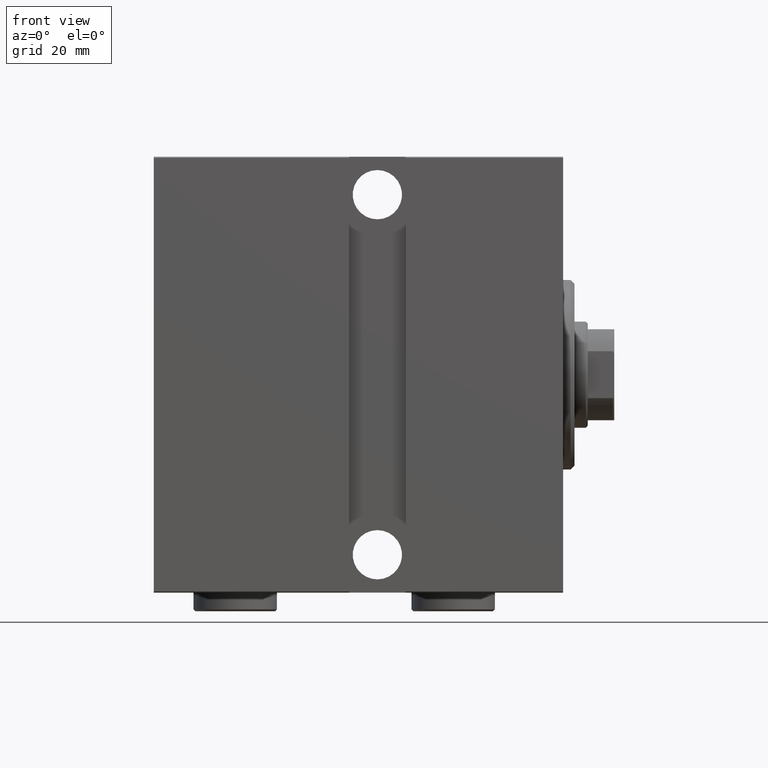
[diagram: clean part render]
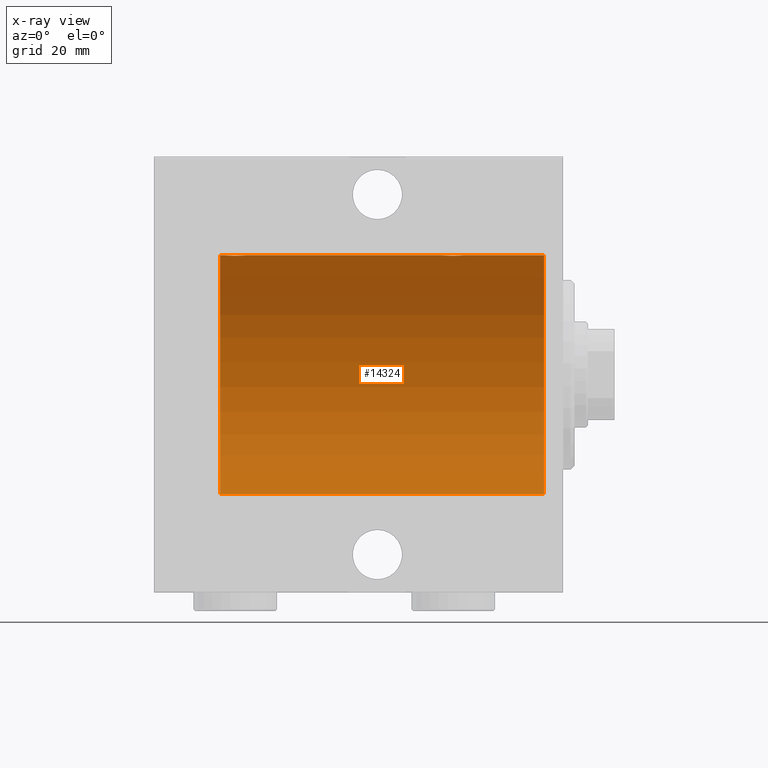
[diagram: x-ray — body ghosted, one internal face saturated and labeled with its STEP entity id]
A machine part, front view, then the same camera in x-ray: the body is ghosted and one INTERNAL B-rep face — a face not visible from any outside direction — is saturated and labeled: STEP entity #14324.
In plain terms, the highlighted cylindrical surface (partial cylindrical patch) has radius 31.5 mm, axis along (1, 0, -0).
Its self-contained STEP definition (entity closure, byte-faithful):
#264 = CARTESIAN_POINT ( 'NONE',  ( 83.89582218725267637, -1.502389880413007806, 31.46458023642405166 ) ) ;
#700 = CARTESIAN_POINT ( 'NONE',  ( 83.65339536257499731, -0.9669616078782038437, 31.48567319468627446 ) ) ;
#787 = DIRECTION ( 'NONE',  ( -1.000000000000000000, -0.000000000000000000, -0.000000000000000000 ) ) ;
#1516 = VERTEX_POINT ( 'NONE', #37406 ) ;
#1623 = CARTESIAN_POINT ( 'NONE',  ( 90.50000000000000000, 0.000000000000000000, 31.50000000000000000 ) ) ;
#1651 = VERTEX_POINT ( 'NONE', #31580 ) ;
#1934 = ORIENTED_EDGE ( 'NONE', *, *, #12380, .T. ) ;
#2025 = CARTESIAN_POINT ( 'NONE',  ( 89.42020662950044141, -0.7905881588836197738, 31.49214662150070509 ) ) ;
#2468 = EDGE_LOOP ( 'NONE', ( #41806, #2559, #10579, #20265, #1934, #7512, #6709, #5362 ) ) ;
#2559 = ORIENTED_EDGE ( 'NONE', *, *, #32075, .T. ) ;
#2737 = EDGE_CURVE ( 'NONE', #43913, #34007, #21946, .T. ) ;
#2741 = CARTESIAN_POINT ( 'NONE',  ( 32.00000000000000000, -2.212280765433387153E-16, 31.50000000000000000 ) ) ;
#2912 = CARTESIAN_POINT ( 'NONE',  ( 26.39582218725271190, -1.502389880413000922, 31.46458023642405166 ) ) ;
#3197 = VERTEX_POINT ( 'NONE', #42178 ) ;
#3345 = CARTESIAN_POINT ( 'NONE',  ( 32.00000000000000000, -0.3965830985361757932, 31.50000000000000711 ) ) ;
#3693 = B_SPLINE_CURVE_WITH_KNOTS ( 'NONE', 3,
 ( #6690, #39675, #43896, #19845, #43236, #33410, #2912, #30084, #13362, #22738, #33636, #26949, #23617, #19413, #12709, #27383, #27602, #40976, #10669, #11117, #20920, #24257, #14226, #10899, #21359, #37849, #27826, #10453, #20697, #41189, #3345, #24041 ),
 .UNSPECIFIED., .F., .F.,
 ( 4, 2, 2, 2, 2, 2, 2, 2, 2, 2, 2, 2, 2, 2, 2, 4 ),
 ( 0.009384682587134636142, 0.009971088165454035368, 0.01055749374377343633, 0.01114389932209283729, 0.01173030490041223652, 0.01231671047873163748, 0.01290311605705103844, 0.01348952163537044113, 0.01407592721368984209, 0.01466233279200924305, 0.01524873837032864402, 0.01583514394864804498, 0.01642154952696744594, 0.01700795510528684690, 0.01759436068360624786, 0.01876717184024504284 ),
 .UNSPECIFIED. ) ;
#4069 = VERTEX_POINT ( 'NONE', #2741 ) ;
#4306 = CARTESIAN_POINT ( 'NONE',  ( 90.50000000000000000, 3.857637417314162689E-15, -31.50000000000000000 ) ) ;
#4347 = DIRECTION ( 'NONE',  ( 0.000000000000000000, 0.000000000000000000, 1.000000000000000000 ) ) ;
#4714 = CARTESIAN_POINT ( 'NONE',  ( 88.75824501903265684, -1.984587626072078281, 31.43772577203671048 ) ) ;
#5362 = ORIENTED_EDGE ( 'NONE', *, *, #2737, .F. ) ;
#5914 = DIRECTION ( 'NONE',  ( -1.000000000000000000, 0.000000000000000000, 0.000000000000000000 ) ) ;
#6690 = CARTESIAN_POINT ( 'NONE',  ( 26.00000000000000355, -2.117263226567934635E-23, 31.50000000000000000 ) ) ;
#6709 = ORIENTED_EDGE ( 'NONE', *, *, #40121, .T. ) ;
#7158 = CARTESIAN_POINT ( 'NONE',  ( 84.51539640075333182, -2.258226318633794083, 31.41925597582825702 ) ) ;
#7166 = VECTOR ( 'NONE', #42759, 1000.000000000000000 ) ;
#7512 = ORIENTED_EDGE ( 'NONE', *, *, #9367, .F. ) ;
#8448 = DIRECTION ( 'NONE',  ( -1.000000000000000000, 0.000000000000000000, 0.000000000000000000 ) ) ;
#8938 = CARTESIAN_POINT ( 'NONE',  ( 89.50000000000001421, -0.3965830985361756822, 31.50000000000000711 ) ) ;
#9367 = EDGE_CURVE ( 'NONE', #26934, #4069, #31611, .T. ) ;
#10037 = AXIS2_PLACEMENT_3D ( 'NONE', #30847, #787, #4347 ) ;
#10453 = CARTESIAN_POINT ( 'NONE',  ( 31.60192140439154684, -1.506272792558327467, 31.46439306106696421 ) ) ;
#10576 = B_SPLINE_CURVE_WITH_KNOTS ( 'NONE', 3,
 ( #23880, #37464, #17194, #14283, #700, #30768, #264, #24088, #37676, #7158, #17412, #14054, #41239, #10721, #11828, #18959, #18299, #18745, #21854, #35427, #12044, #39231, #28317, #32523, #25199, #4714, #41911, #25414, #21645, #2025, #8938, #32307 ),
 .UNSPECIFIED., .F., .F.,
 ( 4, 2, 2, 2, 2, 2, 2, 2, 2, 2, 2, 2, 2, 2, 2, 4 ),
 ( 0.009384682587134656959, 0.009971088165454059654, 0.01055749374377346235, 0.01114389932209286505, 0.01173030490041226774, 0.01231671047873167044, 0.01290311605705107487, 0.01348952163537047583, 0.01407592721368988026, 0.01466233279200928122, 0.01524873837032868565, 0.01583514394864808661, 0.01642154952696749104, 0.01700795510528689200, 0.01759436068360629296, 0.01876717184024508447 ),
 .UNSPECIFIED. ) ;
#10579 = ORIENTED_EDGE ( 'NONE', *, *, #25117, .T. ) ;
#10669 = CARTESIAN_POINT ( 'NONE',  ( 29.39114547339941907, -2.980809450819707163, 31.35867074198615967 ) ) ;
#10721 = CARTESIAN_POINT ( 'NONE',  ( 85.53055544341474103, -2.845838211243347793, 31.37127560316186603 ) ) ;
#10899 = CARTESIAN_POINT ( 'NONE',  ( 30.82704225370269668, -2.387531469909775605, 31.40957782495775419 ) ) ;
#11117 = CARTESIAN_POINT ( 'NONE',  ( 29.77469094434372465, -2.904836261170110845, 31.36579955910872997 ) ) ;
#11795 = CARTESIAN_POINT ( 'NONE',  ( 90.50000000000000000, 0.000000000000000000, 31.50000000000000000 ) ) ;
#11828 = CARTESIAN_POINT ( 'NONE',  ( 85.72118087357677041, -2.903733559410701215, 31.36590199989303684 ) ) ;
#12044 = CARTESIAN_POINT ( 'NONE',  ( 87.46515729810640494, -2.847307171789049018, 31.37114183851420179 ) ) ;
#12082 = LINE ( 'NONE', #1623, #21454 ) ;
#12380 = EDGE_CURVE ( 'NONE', #34790, #4069, #3693, .T. ) ;
#12709 = CARTESIAN_POINT ( 'NONE',  ( 28.22118087357679528, -2.903733559410688336, 31.36590199989304395 ) ) ;
#13162 = AXIS2_PLACEMENT_3D ( 'NONE', #26262, #8448, #22255 ) ;
#13362 = CARTESIAN_POINT ( 'NONE',  ( 26.73904537543871029, -1.981494824113332998, 31.43792153503156683 ) ) ;
#14054 = CARTESIAN_POINT ( 'NONE',  ( 84.99543714992999810, -2.602826974226411849, 31.39247100434485560 ) ) ;
#14226 = CARTESIAN_POINT ( 'NONE',  ( 30.50098156296147422, -2.604888532024794312, 31.39229907792057972 ) ) ;
#14283 = CARTESIAN_POINT ( 'NONE',  ( 83.59580549261940519, -0.7775502215293890185, 31.49099686045558144 ) ) ;
#14324 = ADVANCED_FACE ( 'NONE', ( #17274 ), #41329, .F. ) ;
#15427 = EDGE_CURVE ( 'NONE', #3197, #43913, #25012, .T. ) ;
#15674 = EDGE_CURVE ( 'NONE', #34790, #1516, #12082, .T. ) ;
#16256 = VECTOR ( 'NONE', #18839, 1000.000000000000000 ) ;
#16557 = CARTESIAN_POINT ( 'NONE',  ( 26.00000000000000355, -2.117263226567934635E-23, 31.50000000000000000 ) ) ;
#17194 = CARTESIAN_POINT ( 'NONE',  ( 83.51898490608482462, -0.3904857149112057613, 31.49817436802766935 ) ) ;
#17274 = FACE_OUTER_BOUND ( 'NONE', #2468, .T. ) ;
#17412 = CARTESIAN_POINT ( 'NONE',  ( 84.66956308512999385, -2.384935707362453527, 31.40977595730572958 ) ) ;
#17671 = DIRECTION ( 'NONE',  ( -1.000000000000000000, -0.000000000000000000, -0.000000000000000000 ) ) ;
#18299 = CARTESIAN_POINT ( 'NONE',  ( 86.29953541025902553, -2.999845816735311921, 31.35683219171744796 ) ) ;
#18745 = CARTESIAN_POINT ( 'NONE',  ( 86.69582294439439352, -3.000152387858501690, 31.35680286115500337 ) ) ;
#18839 = DIRECTION ( 'NONE',  ( -1.000000000000000000, -0.000000000000000000, -0.000000000000000000 ) ) ;
#18959 = CARTESIAN_POINT ( 'NONE',  ( 86.10465888999905815, -2.980257240990072276, 31.35872356503798031 ) ) ;
#19413 = CARTESIAN_POINT ( 'NONE',  ( 28.03055544341478367, -2.845838211243338023, 31.37127560316188024 ) ) ;
#19845 = CARTESIAN_POINT ( 'NONE',  ( 26.09580549261944071, -0.7775502215293879082, 31.49099686045559565 ) ) ;
#20155 = DIRECTION ( 'NONE',  ( 0.000000000000000000, 0.000000000000000000, 1.000000000000000000 ) ) ;
#20265 = ORIENTED_EDGE ( 'NONE', *, *, #15674, .F. ) ;
#20697 = CARTESIAN_POINT ( 'NONE',  ( 31.69529642359011135, -1.331741824817660236, 31.47235367475394341 ) ) ;
#20920 = CARTESIAN_POINT ( 'NONE',  ( 29.96515729810639783, -2.847307171789040581, 31.37114183851420890 ) ) ;
#20962 = CIRCLE ( 'NONE', #13162, 31.50000000000000000 ) ;
#21359 = CARTESIAN_POINT ( 'NONE',  ( 30.98143462873041543, -2.261012035264784004, 31.41905495618427935 ) ) ;
#21454 = VECTOR ( 'NONE', #42386, 1000.000000000000000 ) ;
#21645 = CARTESIAN_POINT ( 'NONE',  ( 89.19529642359012200, -1.331741824817668673, 31.47235367475394341 ) ) ;
#21854 = CARTESIAN_POINT ( 'NONE',  ( 86.89114547339940486, -2.980809450819716044, 31.35867074198615256 ) ) ;
#21946 = LINE ( 'NONE', #35521, #16256 ) ;
#22255 = DIRECTION ( 'NONE',  ( 0.000000000000000000, 0.000000000000000000, 1.000000000000000000 ) ) ;
#22738 = CARTESIAN_POINT ( 'NONE',  ( 27.01539640075336379, -2.258226318633789642, 31.41925597582827123 ) ) ;
#23208 = CARTESIAN_POINT ( 'NONE',  ( 83.49999999999998579, -2.116947682205846230E-23, 31.50000000000000000 ) ) ;
#23366 = CARTESIAN_POINT ( 'NONE',  ( 90.50000000000000000, 0.000000000000000000, 31.50000000000000000 ) ) ;
#23617 = CARTESIAN_POINT ( 'NONE',  ( 27.66760041900836242, -2.695056442718537060, 31.38458855656185875 ) ) ;
#23880 = CARTESIAN_POINT ( 'NONE',  ( 83.49999999999998579, -2.116947682205846230E-23, 31.50000000000000000 ) ) ;
#24041 = CARTESIAN_POINT ( 'NONE',  ( 32.00000000000000000, -2.212280765433387153E-16, 31.50000000000000000 ) ) ;
#24088 = CARTESIAN_POINT ( 'NONE',  ( 84.11498557723074043, -1.830470878313888772, 31.44719957596829474 ) ) ;
#24228 = VECTOR ( 'NONE', #17671, 1000.000000000000000 ) ;
#24257 = CARTESIAN_POINT ( 'NONE',  ( 30.32865414687508832, -2.696917666262911961, 31.38442820068732075 ) ) ;
#24269 = AXIS2_PLACEMENT_3D ( 'NONE', #36413, #5914, #20155 ) ;
#25012 = CIRCLE ( 'NONE', #24269, 31.50000000000000000 ) ;
#25117 = EDGE_CURVE ( 'NONE', #1651, #1516, #20962, .T. ) ;
#25199 = CARTESIAN_POINT ( 'NONE',  ( 88.48143462873044029, -2.261012035264788445, 31.41905495618427935 ) ) ;
#25414 = CARTESIAN_POINT ( 'NONE',  ( 89.10192140439156105, -1.506272792558331464, 31.46439306106695710 ) ) ;
#26262 = CARTESIAN_POINT ( 'NONE',  ( 5.000000000000004441, 0.000000000000000000, 0.000000000000000000 ) ) ;
#26934 = VERTEX_POINT ( 'NONE', #23208 ) ;
#26949 = CARTESIAN_POINT ( 'NONE',  ( 27.49543714993000521, -2.602826974226399859, 31.39247100434484850 ) ) ;
#27383 = CARTESIAN_POINT ( 'NONE',  ( 28.60465888999905815, -2.980257240990060286, 31.35872356503798031 ) ) ;
#27602 = CARTESIAN_POINT ( 'NONE',  ( 28.79953541025905395, -2.999845816735302151, 31.35683219171744796 ) ) ;
#27826 = CARTESIAN_POINT ( 'NONE',  ( 31.38246872266632082, -1.833765390051044220, 31.44700610425690712 ) ) ;
#28317 = CARTESIAN_POINT ( 'NONE',  ( 88.00098156296147067, -2.604888532024803194, 31.39229907792057972 ) ) ;
#30084 = CARTESIAN_POINT ( 'NONE',  ( 26.61498557723073333, -1.830470878313879668, 31.44719957596828763 ) ) ;
#30768 = CARTESIAN_POINT ( 'NONE',  ( 83.80285761163298730, -1.328004386210312138, 31.47251238182140298 ) ) ;
#30847 = CARTESIAN_POINT ( 'NONE',  ( 90.50000000000000000, 0.000000000000000000, 0.000000000000000000 ) ) ;
#31021 = LINE ( 'NONE', #4306, #24228 ) ;
#31580 = CARTESIAN_POINT ( 'NONE',  ( 5.000000000000004441, 3.857637417314162689E-15, -31.50000000000000000 ) ) ;
#31611 = LINE ( 'NONE', #11795, #7166 ) ;
#32075 = EDGE_CURVE ( 'NONE', #3197, #1651, #31021, .T. ) ;
#32307 = CARTESIAN_POINT ( 'NONE',  ( 89.50000000000000000, 3.986776180743416568E-16, 31.50000000000000000 ) ) ;
#32523 = CARTESIAN_POINT ( 'NONE',  ( 88.32704225370268603, -2.387531469909783599, 31.40957782495775419 ) ) ;
#33410 = CARTESIAN_POINT ( 'NONE',  ( 26.30285761163299441, -1.328004386210307919, 31.47251238182140298 ) ) ;
#33636 = CARTESIAN_POINT ( 'NONE',  ( 27.16956308512997964, -2.384935707362441537, 31.40977595730572958 ) ) ;
#34007 = VERTEX_POINT ( 'NONE', #35939 ) ;
#34790 = VERTEX_POINT ( 'NONE', #16557 ) ;
#35427 = CARTESIAN_POINT ( 'NONE',  ( 87.27469094434370334, -2.904836261170119283, 31.36579955910872997 ) ) ;
#35521 = CARTESIAN_POINT ( 'NONE',  ( 90.50000000000000000, 0.000000000000000000, 31.50000000000000000 ) ) ;
#35939 = CARTESIAN_POINT ( 'NONE',  ( 89.50000000000000000, 3.986776180743416568E-16, 31.50000000000000000 ) ) ;
#36413 = CARTESIAN_POINT ( 'NONE',  ( 90.50000000000000000, 0.000000000000000000, 0.000000000000000000 ) ) ;
#37406 = CARTESIAN_POINT ( 'NONE',  ( 5.000000000000004441, 0.000000000000000000, 31.50000000000000000 ) ) ;
#37464 = CARTESIAN_POINT ( 'NONE',  ( 83.49999999999998579, -0.1958045626907475578, 31.50000000000000000 ) ) ;
#37676 = CARTESIAN_POINT ( 'NONE',  ( 84.23904537543869253, -1.981494824113336550, 31.43792153503157394 ) ) ;
#37849 = CARTESIAN_POINT ( 'NONE',  ( 31.25824501903267461, -1.984587626072075617, 31.43772577203673180 ) ) ;
#39231 = CARTESIAN_POINT ( 'NONE',  ( 87.82865414687509542, -2.696917666262918623, 31.38442820068732075 ) ) ;
#39675 = CARTESIAN_POINT ( 'NONE',  ( 26.00000000000000355, -0.1958045626907478631, 31.50000000000000000 ) ) ;
#40121 = EDGE_CURVE ( 'NONE', #26934, #34007, #10576, .T. ) ;
#40976 = CARTESIAN_POINT ( 'NONE',  ( 29.19582294439440062, -3.000152387858491476, 31.35680286115500337 ) ) ;
#41189 = CARTESIAN_POINT ( 'NONE',  ( 31.92020662950041654, -0.7905881588836122242, 31.49214662150069088 ) ) ;
#41239 = CARTESIAN_POINT ( 'NONE',  ( 85.16760041900836598, -2.695056442718549050, 31.38458855656186941 ) ) ;
#41329 = CYLINDRICAL_SURFACE ( 'NONE', #10037, 31.50000000000000000 ) ;
#41806 = ORIENTED_EDGE ( 'NONE', *, *, #15427, .F. ) ;
#41911 = CARTESIAN_POINT ( 'NONE',  ( 88.88246872266631726, -1.833765390051049549, 31.44700610425690002 ) ) ;
#42178 = CARTESIAN_POINT ( 'NONE',  ( 90.50000000000000000, 3.857637417314162689E-15, -31.50000000000000000 ) ) ;
#42386 = DIRECTION ( 'NONE',  ( -1.000000000000000000, -0.000000000000000000, -0.000000000000000000 ) ) ;
#42759 = DIRECTION ( 'NONE',  ( -1.000000000000000000, -0.000000000000000000, -0.000000000000000000 ) ) ;
#43236 = CARTESIAN_POINT ( 'NONE',  ( 26.15339536257502218, -0.9669616078782009572, 31.48567319468626735 ) ) ;
#43896 = CARTESIAN_POINT ( 'NONE',  ( 26.01898490608483527, -0.3904857149112059278, 31.49817436802766224 ) ) ;
#43913 = VERTEX_POINT ( 'NONE', #23366 ) ;